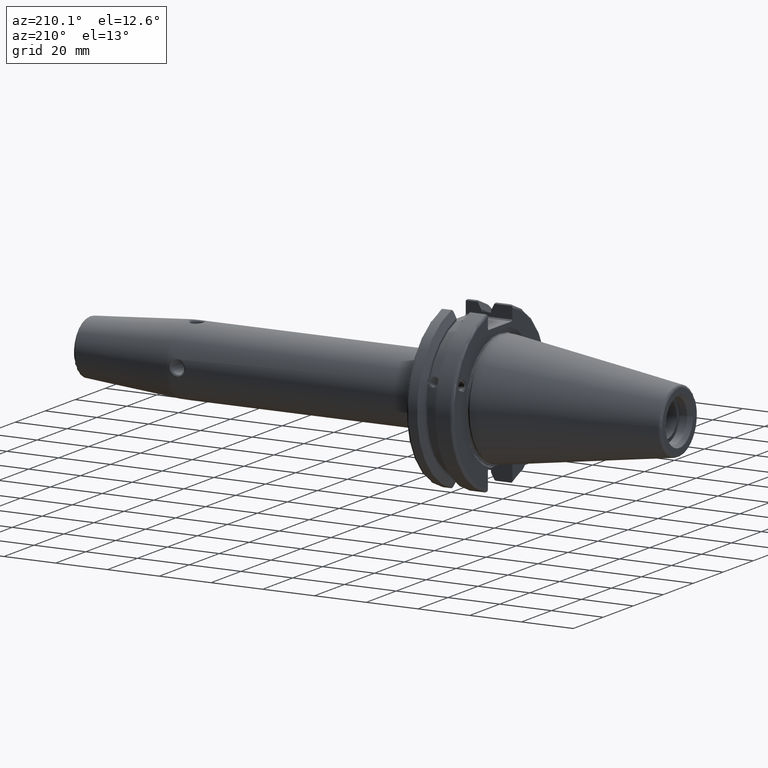
[diagram: clean part render]
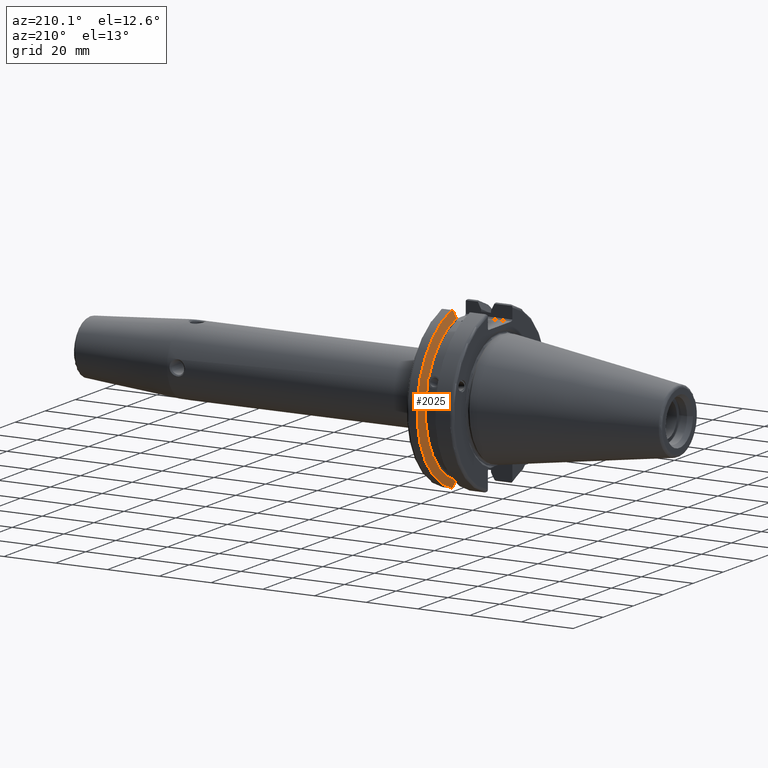
[diagram: same view with one face highlighted and labeled with its STEP entity id]
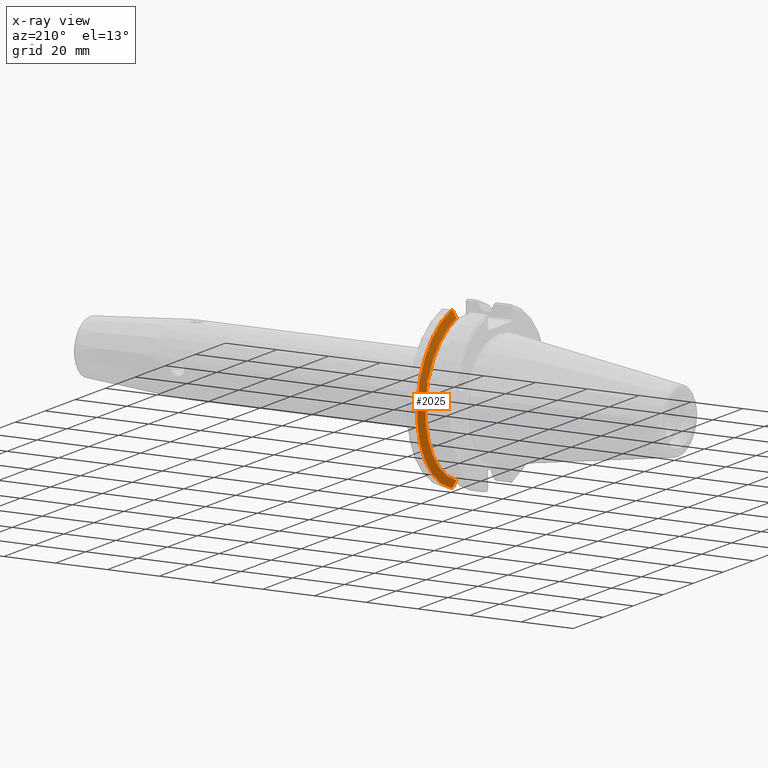
[diagram: x-ray of the same camera — body ghosted, the highlighted face saturated]
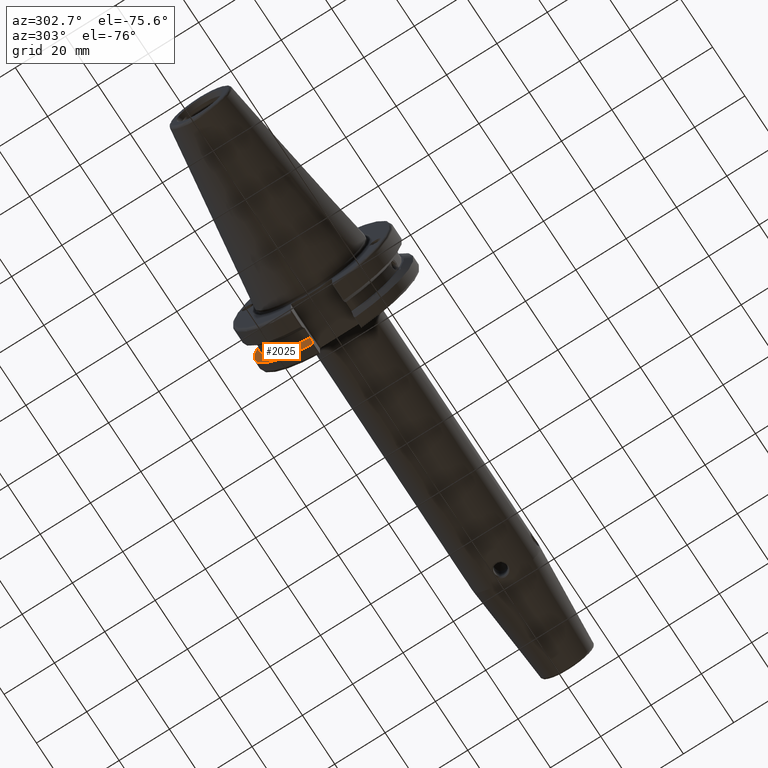
[diagram: same view with one face highlighted and labeled with its STEP entity id]
A machine part, auxiliary view. The second image highlights one B-rep face of the part: STEP entity #2025.
The next image is the same camera in x-ray: the body ghosted, the highlighted face saturated — about 0% of this face is hidden behind the body in this view.
A second angle (auxiliary view) of the same face is appended — the face is thin or edge-on in the first view.
In plain terms, the highlighted conical surface has half-angle 60 deg.
Its self-contained STEP definition (entity closure, byte-faithful):
#22=(
BOUNDED_CURVE()
B_SPLINE_CURVE(2,(#4424,#4425,#4426),.UNSPECIFIED.,.F.,.F.)
B_SPLINE_CURVE_WITH_KNOTS((3,3),(0.329353533631205,0.393258405001023),
 .UNSPECIFIED.)
CURVE()
GEOMETRIC_REPRESENTATION_ITEM()
RATIONAL_B_SPLINE_CURVE((1.00047644010577,1.00028444218286,1.))
REPRESENTATION_ITEM('')
);
#23=(
BOUNDED_CURVE()
B_SPLINE_CURVE(2,(#4441,#4442,#4443),.UNSPECIFIED.,.F.,.F.)
B_SPLINE_CURVE_WITH_KNOTS((3,3),(0.0550586467390279,0.331607789535849),
 .UNSPECIFIED.)
CURVE()
GEOMETRIC_REPRESENTATION_ITEM()
RATIONAL_B_SPLINE_CURVE((1.00031614445116,1.00095203904229,1.))
REPRESENTATION_ITEM('')
);
#30=(
BOUNDED_CURVE()
B_SPLINE_CURVE(2,(#4641,#4642,#4643),.UNSPECIFIED.,.F.,.F.)
B_SPLINE_CURVE_WITH_KNOTS((3,3),(0.,0.276549142796813),.UNSPECIFIED.)
CURVE()
GEOMETRIC_REPRESENTATION_ITEM()
RATIONAL_B_SPLINE_CURVE((1.,1.00095203904207,1.00031614445109))
REPRESENTATION_ITEM('')
);
#31=(
BOUNDED_CURVE()
B_SPLINE_CURVE(2,(#4658,#4659,#4660),.UNSPECIFIED.,.F.,.F.)
B_SPLINE_CURVE_WITH_KNOTS((3,3),(0.,0.0639048713675949),.UNSPECIFIED.)
CURVE()
GEOMETRIC_REPRESENTATION_ITEM()
RATIONAL_B_SPLINE_CURVE((1.,1.00028444218283,1.00047644010573))
REPRESENTATION_ITEM('')
);
#146=CONICAL_SURFACE('',#2252,30.3546886482472,1.0471975511966);
#246=FACE_OUTER_BOUND('',#379,.T.);
#379=EDGE_LOOP('',(#1814,#1815,#1816,#1817,#1818,#1819,#1820,#1821,#1822));
#688=CIRCLE('',#2194,28.9593772964944);
#706=CIRCLE('',#2245,31.75);
#709=CIRCLE('',#2253,28.9593772964944);
#760=B_SPLINE_CURVE_WITH_KNOTS('',3,(#4263,#4264,#4265,#4266,#4267,#4268,
#4269,#4270),.UNSPECIFIED.,.F.,.F.,(4,2,2,4),(0.451995700189027,0.464547828547661,
0.504528771685166,0.544509714822671),.UNSPECIFIED.);
#764=B_SPLINE_CURVE_WITH_KNOTS('',3,(#4325,#4326,#4327,#4328,#4329,#4330,
#4331,#4332),.UNSPECIFIED.,.F.,.F.,(4,2,2,4),(0.544509714822671,0.584490657960176,
0.624471601097681,0.637023729456316),.UNSPECIFIED.);
#899=VERTEX_POINT('',#4260);
#900=VERTEX_POINT('',#4262);
#907=VERTEX_POINT('',#4323);
#916=VERTEX_POINT('',#4365);
#926=VERTEX_POINT('',#4421);
#927=VERTEX_POINT('',#4423);
#968=VERTEX_POINT('',#4638);
#969=VERTEX_POINT('',#4640);
#972=VERTEX_POINT('',#4656);
#1149=EDGE_CURVE('',#900,#899,#760,.T.);
#1157=EDGE_CURVE('',#899,#907,#764,.T.);
#1169=EDGE_CURVE('',#916,#900,#688,.T.);
#1185=EDGE_CURVE('',#926,#927,#22,.T.);
#1191=EDGE_CURVE('',#926,#916,#23,.T.);
#1252=EDGE_CURVE('',#969,#968,#30,.T.);
#1260=EDGE_CURVE('',#972,#968,#31,.T.);
#1261=EDGE_CURVE('',#927,#972,#706,.T.);
#1267=EDGE_CURVE('',#907,#969,#709,.T.);
#1814=ORIENTED_EDGE('',*,*,#1149,.T.);
#1815=ORIENTED_EDGE('',*,*,#1157,.T.);
#1816=ORIENTED_EDGE('',*,*,#1267,.T.);
#1817=ORIENTED_EDGE('',*,*,#1252,.T.);
#1818=ORIENTED_EDGE('',*,*,#1260,.F.);
#1819=ORIENTED_EDGE('',*,*,#1261,.F.);
#1820=ORIENTED_EDGE('',*,*,#1185,.F.);
#1821=ORIENTED_EDGE('',*,*,#1191,.T.);
#1822=ORIENTED_EDGE('',*,*,#1169,.T.);
#2025=ADVANCED_FACE('',(#246),#146,.T.);
#2194=AXIS2_PLACEMENT_3D('',#4366,#2606,#2607);
#2245=AXIS2_PLACEMENT_3D('',#4662,#2755,#2756);
#2252=AXIS2_PLACEMENT_3D('',#4675,#2772,#2773);
#2253=AXIS2_PLACEMENT_3D('',#4676,#2774,#2775);
#2606=DIRECTION('center_axis',(1.,0.,0.));
#2607=DIRECTION('ref_axis',(0.,0.,-1.));
#2755=DIRECTION('center_axis',(1.,0.,0.));
#2756=DIRECTION('ref_axis',(0.,0.,-1.));
#2772=DIRECTION('center_axis',(1.,0.,0.));
#2773=DIRECTION('ref_axis',(0.,1.,0.));
#2774=DIRECTION('center_axis',(1.,0.,0.));
#2775=DIRECTION('ref_axis',(0.,0.,-1.));
#4260=CARTESIAN_POINT('',(13.276,27.51401829017,10.0142836826778));
#4262=CARTESIAN_POINT('',(13.091,27.4956274489925,9.09043478536249));
#4263=CARTESIAN_POINT('Ctrl Pts',(13.091,27.4956274489925,9.09043478536249));
#4264=CARTESIAN_POINT('Ctrl Pts',(13.1051204071996,27.5087667900418,9.1286059707622));
#4265=CARTESIAN_POINT('Ctrl Pts',(13.1185929817857,27.5206055003512,9.16696618806879));
#4266=CARTESIAN_POINT('Ctrl Pts',(13.171981441159,27.5642934663232,9.32791534028656));
#4267=CARTESIAN_POINT('Ctrl Pts',(13.2101197084175,27.5867382255984,9.46717946402648));
#4268=CARTESIAN_POINT('Ctrl Pts',(13.2623106446058,27.5847569104122,9.74771639360672));
#4269=CARTESIAN_POINT('Ctrl Pts',(13.276,27.559599249844,9.8890510252165));
#4270=CARTESIAN_POINT('Ctrl Pts',(13.276,27.51401829017,10.0142836826778));
#4323=CARTESIAN_POINT('',(13.091,26.9060914640648,10.7101715919071));
#4325=CARTESIAN_POINT('Ctrl Pts',(13.276,27.51401829017,10.0142836826778));
#4326=CARTESIAN_POINT('Ctrl Pts',(13.276,27.4684373304961,10.139516340139));
#4327=CARTESIAN_POINT('Ctrl Pts',(13.2623106446058,27.3968610665578,10.2639559818059));
#4328=CARTESIAN_POINT('Ctrl Pts',(13.2101197084175,27.2180531796526,10.4801333026531));
#4329=CARTESIAN_POINT('Ctrl Pts',(13.171981441159,27.1113422433189,10.5723885976054));
#4330=CARTESIAN_POINT('Ctrl Pts',(13.1185929817857,26.9744191989197,10.6676007180673));
#4331=CARTESIAN_POINT('Ctrl Pts',(13.1051204071996,26.9406927482839,10.6893765730703));
#4332=CARTESIAN_POINT('Ctrl Pts',(13.091,26.9060914640648,10.7101715919071));
#4365=CARTESIAN_POINT('',(13.091,8.19,-27.7771386827498));
#4366=CARTESIAN_POINT('Origin',(13.091,0.,0.));
#4421=CARTESIAN_POINT('',(14.4234146964874,8.19,-30.1755016258903));
#4423=CARTESIAN_POINT('',(14.7021667690756,8.67204822802685,-30.5427254764662));
#4424=CARTESIAN_POINT('Ctrl Pts',(14.4234146964874,8.19,-30.1755016258903));
#4425=CARTESIAN_POINT('Ctrl Pts',(14.5611085187884,8.42917748263465,-30.3577067892692));
#4426=CARTESIAN_POINT('Ctrl Pts',(14.7021667690756,8.67204822802686,-30.5427254764662));
#4441=CARTESIAN_POINT('Ctrl Pts',(14.4234146964874,8.19,-30.1755016258903));
#4442=CARTESIAN_POINT('Ctrl Pts',(13.7296364384736,8.19,-28.9303689539661));
#4443=CARTESIAN_POINT('Ctrl Pts',(13.091,8.19,-27.7771386827498));
#4638=CARTESIAN_POINT('',(14.4234146964874,8.19,30.1755016258903));
#4640=CARTESIAN_POINT('',(13.091,8.19,27.7771386827498));
#4641=CARTESIAN_POINT('Ctrl Pts',(13.091,8.19,27.7771386827498));
#4642=CARTESIAN_POINT('Ctrl Pts',(13.7296364384736,8.19,28.930368953966));
#4643=CARTESIAN_POINT('Ctrl Pts',(14.4234146964874,8.19,30.1755016258903));
#4656=CARTESIAN_POINT('',(14.7021667690756,8.67204822802685,30.5427254764662));
#4658=CARTESIAN_POINT('Ctrl Pts',(14.7021667690756,8.67204822802686,30.5427254764662));
#4659=CARTESIAN_POINT('Ctrl Pts',(14.5611085187837,8.42917748262646,30.357706789263));
#4660=CARTESIAN_POINT('Ctrl Pts',(14.4234146964874,8.19,30.1755016258903));
#4662=CARTESIAN_POINT('Origin',(14.7021667690756,0.,0.));
#4675=CARTESIAN_POINT('Origin',(13.8965833845378,0.,0.));
#4676=CARTESIAN_POINT('Origin',(13.091,0.,0.));